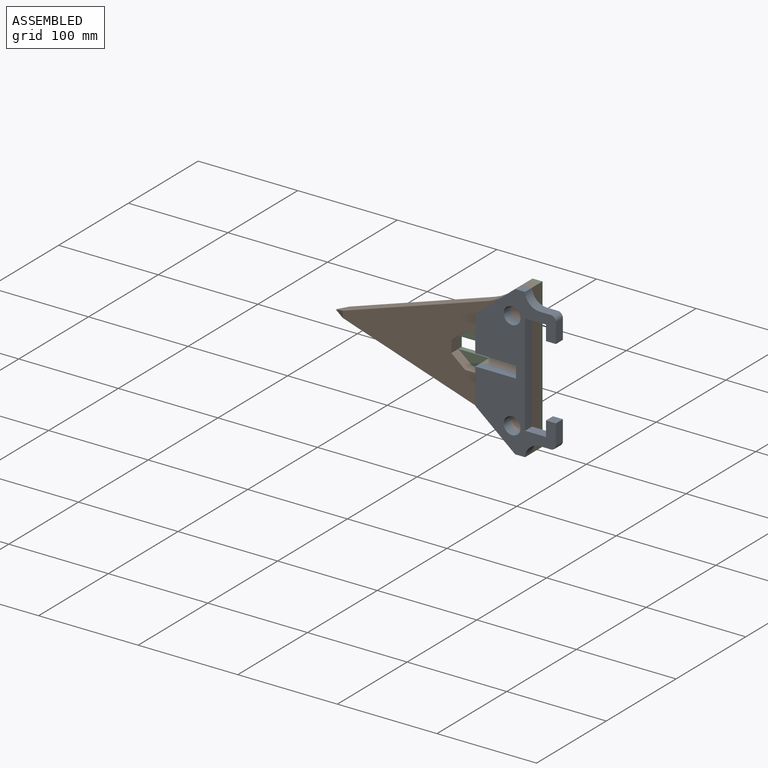
[diagram: assembled view]
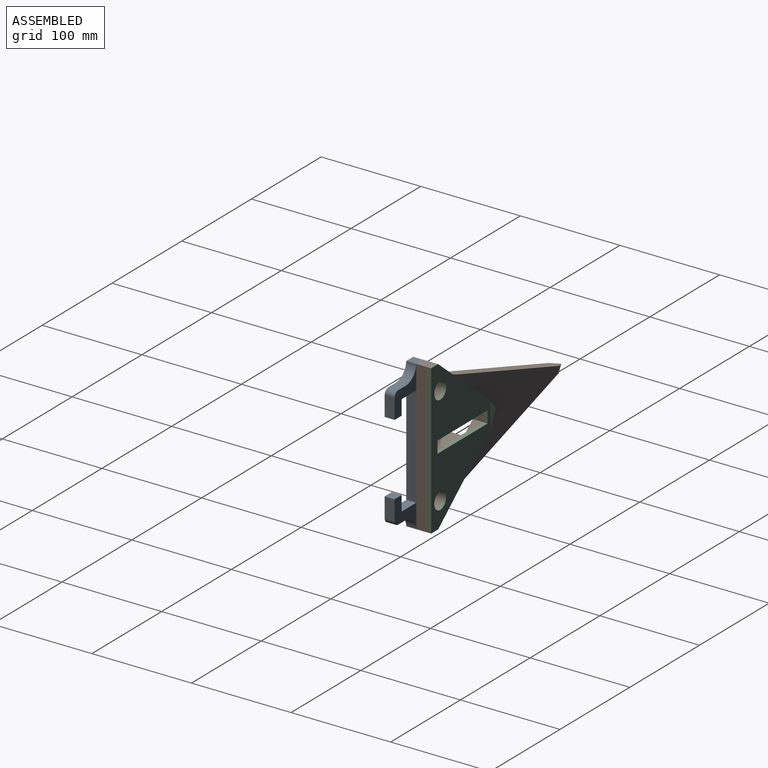
[diagram: assembled view, second angle]
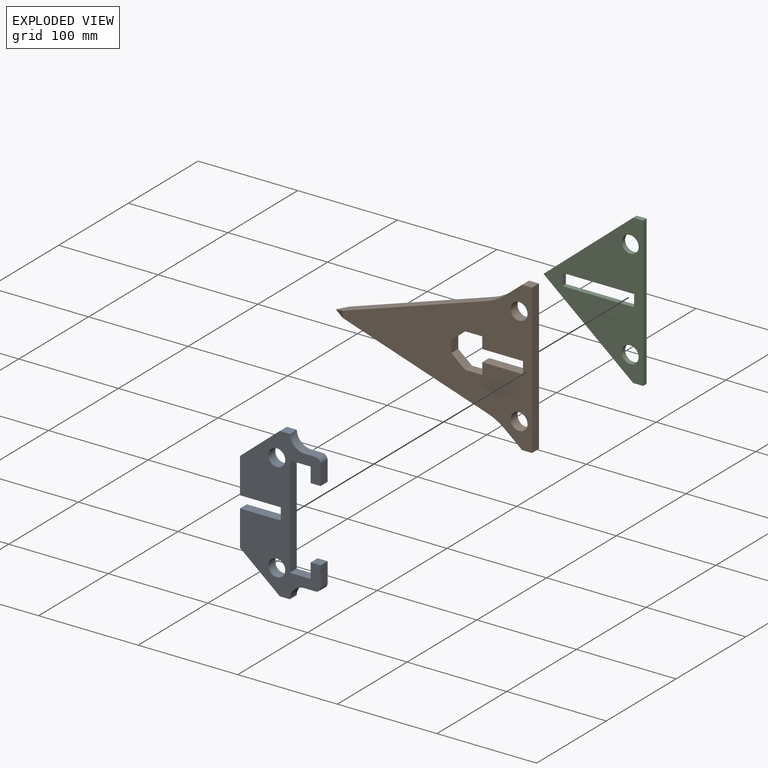
[diagram: exploded view]
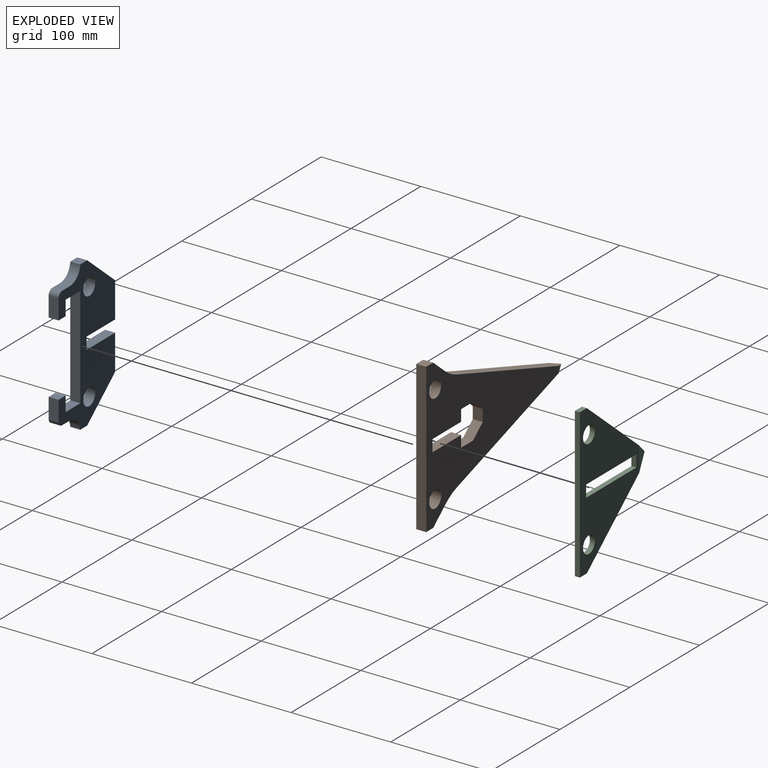
[diagram: exploded view, second angle]
ASSEMBLY  parts=3 mates=2
PART A: 28 faces, bbox 81x10x150 mm
  f0: plane 10x10mm, normal (0,0,-1), area 100mm2, adj f21,f22,f23,f24
  f1: plane 11.03x10mm, normal (0,0,-1), area 110.3mm2, adj f22,f23,f24,f26
  f2: plane 20x10mm, normal (1,0,0), area 200mm2, adj f3,f22,f23,f26
  f3: plane 10x10mm, normal (0,0,1), area 100mm2, adj f2,f4,f22,f23
  f4: plane 15x10mm, normal (-1,0,0), area 150mm2, adj f3,f5,f22,f23
  f5: plane 21x10mm, normal (0,0,1), area 210mm2, adj f4,f6,f22,f23
  f6: plane 102x10mm, normal (1,0,0), area 1020mm2, adj f5,f7,f22,f23
  f7: plane 21x10mm, normal (0,0,-1), area 210mm2, adj f6,f8,f22,f23
  f8: plane 15x10mm, normal (-1,0,0), area 150mm2, adj f7,f9,f22,f23
  f9: plane 10x10mm, normal (0,0,-1), area 100mm2, adj f8,f10,f22,f23
  f10: plane 20x10mm, normal (1,0,0), area 200mm2, adj f9,f22,f23,f27
  f11: plane 11.03x10mm, normal (0,0,1), area 110.3mm2, adj f22,f23,f25,f27
  f12: plane 10x10mm, normal (0,0,1), area 100mm2, adj f13,f22,f23,f25
  f13: plane 40x33.33mm, normal (-0.64,0,0.77), area 520.7mm2, adj f12,f14,f22,f23
  f14: plane 35.67x10mm, normal (-1,0,0), area 356.7mm2, adj f13,f15,f22,f23
  f15: plane 41x10mm, normal (0,0,-1), area 410mm2, adj f14,f16,f22,f23
  f16: plane 12x10mm, normal (-1,0,0), area 120mm2, adj f15,f17,f22,f23
  f17: plane 41x10mm, normal (0,0,1), area 410mm2, adj f16,f18,f22,f23
  f18: plane 35.67x10mm, normal (-1,0,0), area 356.7mm2, adj f17,f21,f22,f23
  f19: cylinder r=8.5mm len=17mm, axis (0,-1,0), area 534.1mm2, adj f22,f23
  f20: cylinder r=8.5mm len=17mm, axis (0,-1,0), area 534.1mm2, adj f22,f23
  f21: plane 40x33.33mm, normal (-0.64,0,-0.77), area 520.7mm2, adj f0,f18,f22,f23
  f22: plane 150x81mm, normal (0,1,0), area 6225.6mm2, adj f0,f1,f2,f3,f4,f5,f6,f7
  f23: plane 150x81mm, normal (0,-1,0), area 6225.6mm2, adj f0,f1,f2,f3,f4,f5,f6,f7
  f24: cylinder r=15mm len=14.97mm, axis (0,-1,0), area 225.6mm2, adj f0,f1,f22,f23
  f25: cylinder r=15mm len=14.97mm, axis (0,1,0), area 225.6mm2, adj f11,f12,f22,f23
  f26: cylinder r=5mm len=10mm, axis (0,-1,0), area 78.5mm2, adj f1,f2,f22,f23
  f27: cylinder r=5mm len=10mm, axis (0,-1,0), area 78.5mm2, adj f10,f11,f22,f23
PART B: 25 faces, bbox 200x10x150 mm
  f0: plane 155.92x51.19mm, normal (-0.31,0,0.95), area 1593.8mm2, adj f1,f2,f3,f21,f22,f23
  f1: plane 155.92x51.19mm, normal (-0.31,0,-0.95), area 1593.8mm2, adj f0,f2,f3,f21,f22,f24
  f2: plane 190x150mm, normal (0,1,0), area 11773mm2, adj f0,f1,f4,f5,f6,f7,f8,f9
  f3: plane 190x150mm, normal (0,-1,0), area 11773mm2, adj f0,f1,f4,f5,f6,f7,f8,f9
  f4: plane 10x10mm, normal (0,0,1), area 100mm2, adj f2,f3,f5,f18
  f5: plane 17.66x14.72mm, normal (-0.64,0,0.77), area 229.9mm2, adj f2,f3,f4,f23
  f6: plane 17.66x14.72mm, normal (-0.64,0,-0.77), area 229.9mm2, adj f2,f3,f7,f24
  f7: plane 10x10mm, normal (0,0,-1), area 100mm2, adj f2,f3,f6,f18
  f8: plane 12x10mm, normal (-1,0,0), area 120mm2, adj f2,f3,f9,f19
  f9: plane 41x10mm, normal (0,0,1), area 410mm2, adj f2,f3,f8,f10
  f10: plane 11.5x10mm, normal (-1,0,0), area 115mm2, adj f2,f3,f9,f11
  f11: plane 17.2x10mm, normal (0,0,1), area 172mm2, adj f2,f3,f10,f12
  f12: plane 13.8x11.5mm, normal (0.64,0,0.77), area 179.6mm2, adj f2,f3,f11,f13
  f13: plane 12x10mm, normal (1,0,0), area 120mm2, adj f2,f3,f12,f14
  f14: plane 13.8x11.5mm, normal (0.64,0,-0.77), area 179.6mm2, adj f2,f3,f13,f15
  f15: plane 17.2x10mm, normal (0,0,-1), area 172mm2, adj f2,f3,f14,f16
  f16: plane 11.5x10mm, normal (-1,0,0), area 115mm2, adj f2,f3,f15,f19
  f17: cylinder r=8.5mm len=17mm, axis (0,-1,0), area 534.1mm2, adj f2,f3
  f18: plane 150x10mm, normal (1,0,0), area 1500mm2, adj f2,f3,f4,f7
  f19: plane 41x10mm, normal (0,0,-1), area 410mm2, adj f2,f3,f8,f16
  f20: cylinder r=8.5mm len=17mm, axis (0,-1,0), area 534.1mm2, adj f2,f3
  f21: plane 10x6.57mm, normal (-0.41,-0.91,0), area 36mm2, adj f0,f1,f3
  f22: plane 10x6.57mm, normal (-0.41,0.91,0), area 36mm2, adj f0,f1,f2
  f23: cylinder r=50mm len=16.41mm, axis (0,-1,0), area 188.8mm2, adj f0,f2,f3,f5
  f24: cylinder r=50mm len=16.41mm, axis (0,-1,0), area 188.8mm2, adj f1,f2,f3,f6
PART C: 14 faces, bbox 100x5x150 mm
  f0: plane 150x85mm, normal (0,1,0), area 6744.5mm2, adj f1,f2,f3,f4,f5,f6,f7,f8
  f1: plane 10x5mm, normal (0,0,-1), area 50mm2, adj f0,f2,f11,f12
  f2: plane 150x5mm, normal (1,0,0), area 750mm2, adj f0,f1,f3,f12
  f3: plane 10x5mm, normal (0,0,1), area 50mm2, adj f0,f2,f4,f12
  f4: plane 90x75mm, normal (-0.64,0,0.77), area 537mm2, adj f0,f3,f12,f13
  f5: plane 12x5mm, normal (-1,0,0), area 60mm2, adj f0,f6,f8,f12
  f6: plane 72x5mm, normal (0,0,1), area 360mm2, adj f0,f5,f7,f12
  f7: plane 12x5mm, normal (1,0,0), area 60mm2, adj f0,f6,f8,f12
  f8: plane 72x5mm, normal (0,0,-1), area 360mm2, adj f0,f5,f7,f12
  f9: cylinder r=8.5mm len=17mm, axis (0,-1,0), area 267mm2, adj f0,f12
  f10: cylinder r=8.5mm len=17mm, axis (0,-1,0), area 267mm2, adj f0,f12
  f11: plane 90x75mm, normal (-0.64,0,-0.77), area 537mm2, adj f0,f1,f12,f13
  f12: plane 150x100mm, normal (0,-1,0), area 6932mm2, adj f1,f2,f3,f4,f5,f6,f7,f8
  f13: plane 25x15mm, normal (-0.32,0.95,0), area 197.6mm2, adj f0,f4,f11
PLACE A t=(-44.04,-25.18,6.17)mm
PLACE B t=(-44.04,-15.18,6.17)mm
PLACE C t=(-44.04,-5.18,6.17)mm fixed
MATE fastened C.f9 <-> B.f17  axis (0,-1,0) through (-57.04,-5.18,131.17)mm
MATE fastened A.f19 <-> B.f17  axis (0,1,0) through (-57.04,-15.18,131.17)mm
